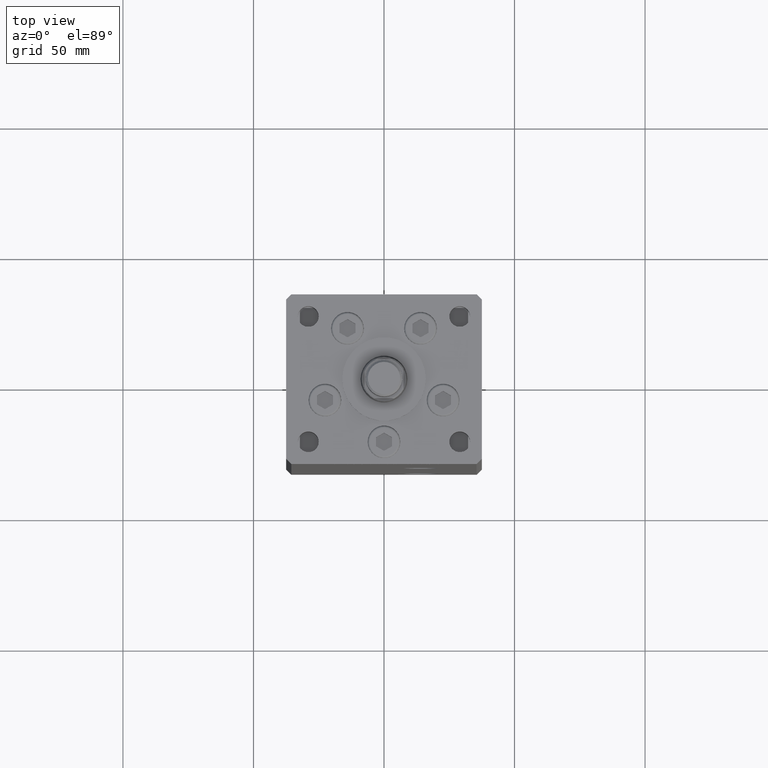
[diagram: clean part render]
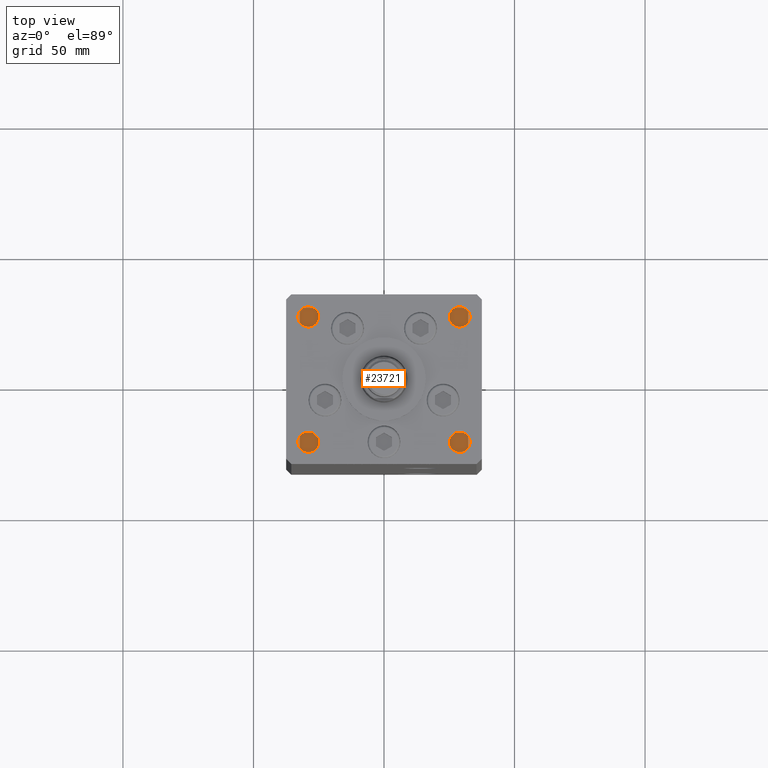
[diagram: same view with one face highlighted and labeled with its STEP entity id]
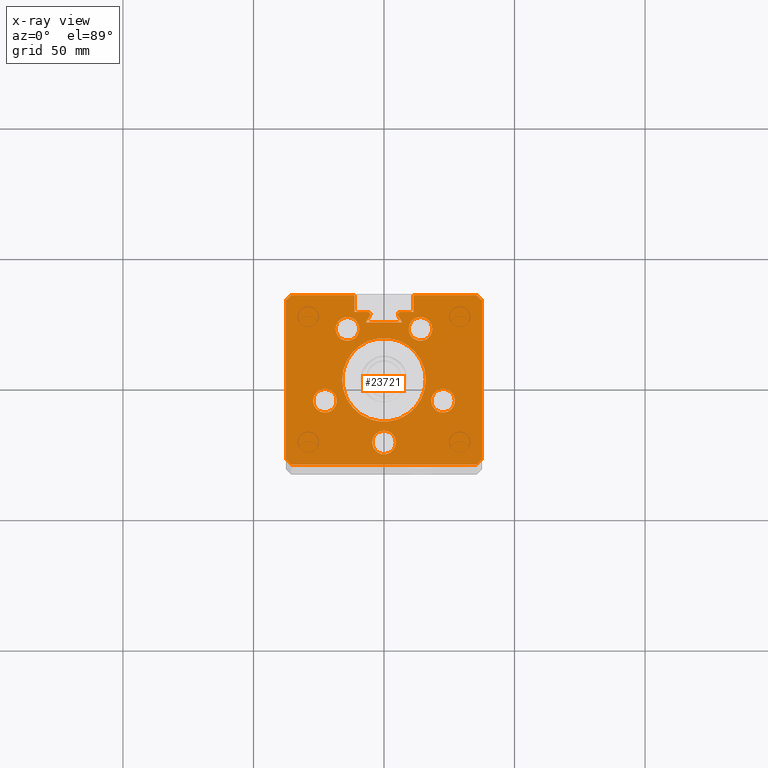
[diagram: x-ray of the same camera — body ghosted, the highlighted face saturated]
A machine part, top view. The second image highlights one B-rep face of the part: STEP entity #23721.
The next image is the same camera in x-ray: the body ghosted, the highlighted face saturated — about 0% of this face is hidden behind the body in this view.
In plain terms, the highlighted planar face has unit normal (0, 0, -1).
Its self-contained STEP definition (entity closure, byte-faithful):
#37 = VERTEX_POINT ( 'NONE', #48605 ) ;
#113 = CARTESIAN_POINT ( 'NONE',  ( -16.00000000000000000, 0.000000000000000000, 206.0000000000000000 ) ) ;
#117 = DIRECTION ( 'NONE',  ( 0.000000000000000000, 0.000000000000000000, -1.000000000000000000 ) ) ;
#181 = DIRECTION ( 'NONE',  ( 0.7071067811865474617, -0.7071067811865474617, 0.000000000000000000 ) ) ;
#227 = DIRECTION ( 'NONE',  ( 1.000000000000000000, 0.000000000000000000, 0.000000000000000000 ) ) ;
#376 = FACE_BOUND ( 'NONE', #45179, .T. ) ;
#673 = EDGE_LOOP ( 'NONE', ( #10820, #40652, #20268, #2091, #6942, #18285, #48519, #7137, #13218, #47845, #20406, #21920, #33794, #22411, #34809, #31749, #48899, #44355, #34330 ) ) ;
#1088 = VECTOR ( 'NONE', #27780, 1000.000000000000000 ) ;
#1311 = ORIENTED_EDGE ( 'NONE', *, *, #10623, .F. ) ;
#1349 = EDGE_CURVE ( 'NONE', #50211, #10175, #34166, .T. ) ;
#1500 = VERTEX_POINT ( 'NONE', #16149 ) ;
#1826 = AXIS2_PLACEMENT_3D ( 'NONE', #43500, #7503, #44012 ) ;
#1924 = CARTESIAN_POINT ( 'NONE',  ( -11.25000000000000178, 25.99999999999999289, 206.0000000000000000 ) ) ;
#2091 = ORIENTED_EDGE ( 'NONE', *, *, #26267, .T. ) ;
#2433 = VERTEX_POINT ( 'NONE', #31929 ) ;
#2911 = EDGE_CURVE ( 'NONE', #14420, #5429, #13732, .T. ) ;
#3542 = CARTESIAN_POINT ( 'NONE',  ( 14.68339468389911495, 8.477461873366666012, 206.0000000000000000 ) ) ;
#3585 = PLANE ( 'NONE',  #4993 ) ;
#3620 = ORIENTED_EDGE ( 'NONE', *, *, #41284, .F. ) ;
#3697 = CARTESIAN_POINT ( 'NONE',  ( 0.000000000000000000, 21.99999999999986855, 206.0000000000000000 ) ) ;
#3783 = DIRECTION ( 'NONE',  ( 0.000000000000000000, 1.000000000000000000, 0.000000000000000000 ) ) ;
#3785 = DIRECTION ( 'NONE',  ( 0.000000000000000000, 0.000000000000000000, -1.000000000000000000 ) ) ;
#3853 = EDGE_CURVE ( 'NONE', #47877, #9593, #51306, .T. ) ;
#4091 = FACE_OUTER_BOUND ( 'NONE', #673, .T. ) ;
#4115 = DIRECTION ( 'NONE',  ( 0.7071067811865500152, -0.7071067811865451302, 0.000000000000000000 ) ) ;
#4127 = VERTEX_POINT ( 'NONE', #113 ) ;
#4418 = CARTESIAN_POINT ( 'NONE',  ( -11.25000000000000178, 32.49999999999999289, 206.0000000000000000 ) ) ;
#4509 = VERTEX_POINT ( 'NONE', #37092 ) ;
#4525 = EDGE_LOOP ( 'NONE', ( #29965, #50258 ) ) ;
#4716 = EDGE_LOOP ( 'NONE', ( #19335, #1311 ) ) ;
#4993 = AXIS2_PLACEMENT_3D ( 'NONE', #23446, #117, #48553 ) ;
#5386 = VERTEX_POINT ( 'NONE', #14395 ) ;
#5429 = VERTEX_POINT ( 'NONE', #34494 ) ;
#5430 = CARTESIAN_POINT ( 'NONE',  ( 6.183333333334001480, 25.99999999999999289, 206.0000000000000000 ) ) ;
#5565 = EDGE_CURVE ( 'NONE', #17421, #13547, #15709, .T. ) ;
#6240 = CARTESIAN_POINT ( 'NONE',  ( 0.000000000000000000, 0.000000000000000000, 206.0000000000000000 ) ) ;
#6879 = VERTEX_POINT ( 'NONE', #45743 ) ;
#6942 = ORIENTED_EDGE ( 'NONE', *, *, #23113, .T. ) ;
#7077 = DIRECTION ( 'NONE',  ( 1.000000000000000000, 0.000000000000000000, 0.000000000000000000 ) ) ;
#7137 = ORIENTED_EDGE ( 'NONE', *, *, #14280, .F. ) ;
#7187 = EDGE_CURVE ( 'NONE', #4127, #33378, #25739, .T. ) ;
#7335 = DIRECTION ( 'NONE',  ( 0.000000000000000000, 0.000000000000000000, 1.000000000000000000 ) ) ;
#7457 = CARTESIAN_POINT ( 'NONE',  ( 4.500000000000000000, -24.00000000000000000, 206.0000000000000000 ) ) ;
#7503 = DIRECTION ( 'NONE',  ( 0.000000000000000000, 0.000000000000000000, -1.000000000000000000 ) ) ;
#7820 = FACE_BOUND ( 'NONE', #4716, .T. ) ;
#8153 = DIRECTION ( 'NONE',  ( 1.000000000000000000, 0.000000000000000000, 0.000000000000000000 ) ) ;
#8579 = VECTOR ( 'NONE', #47861, 1000.000000000000000 ) ;
#8842 = DIRECTION ( 'NONE',  ( -0.7071067811865474617, -0.7071067811865474617, 0.000000000000000000 ) ) ;
#9144 = EDGE_CURVE ( 'NONE', #27064, #13773, #27522, .T. ) ;
#9278 = CARTESIAN_POINT ( 'NONE',  ( 11.25000000000000178, 25.99999999999999289, 206.0000000000000000 ) ) ;
#9593 = VERTEX_POINT ( 'NONE', #42288 ) ;
#9863 = AXIS2_PLACEMENT_3D ( 'NONE', #27704, #43592, #48067 ) ;
#9877 = DIRECTION ( 'NONE',  ( 2.275047181608927644E-16, -1.000000000000000000, 0.000000000000000000 ) ) ;
#9879 = DIRECTION ( 'NONE',  ( 0.000000000000000000, 0.000000000000000000, 1.000000000000000000 ) ) ;
#10104 = LINE ( 'NONE', #26238, #17762 ) ;
#10175 = VERTEX_POINT ( 'NONE', #1924 ) ;
#10226 = CARTESIAN_POINT ( 'NONE',  ( -35.49999999999999289, -32.50000000000000000, 206.0000000000000000 ) ) ;
#10344 = DIRECTION ( 'NONE',  ( -1.000000000000000000, 0.000000000000000000, 0.000000000000000000 ) ) ;
#10515 = CARTESIAN_POINT ( 'NONE',  ( 37.50000000000000711, 30.50000000000000000, 206.0000000000000000 ) ) ;
#10623 = EDGE_CURVE ( 'NONE', #28094, #22994, #47842, .T. ) ;
#10820 = ORIENTED_EDGE ( 'NONE', *, *, #1349, .T. ) ;
#10963 = ORIENTED_EDGE ( 'NONE', *, *, #13136, .F. ) ;
#11019 = CARTESIAN_POINT ( 'NONE',  ( -13.99106857963322170, 19.50000000000000000, 206.0000000000000000 ) ) ;
#11872 = EDGE_LOOP ( 'NONE', ( #49570, #3620 ) ) ;
#12119 = LINE ( 'NONE', #36174, #39696 ) ;
#12294 = EDGE_CURVE ( 'NONE', #21342, #1500, #44483, .T. ) ;
#12697 = CIRCLE ( 'NONE', #44801, 4.499999999999997335 ) ;
#12964 = EDGE_CURVE ( 'NONE', #37, #31954, #46771, .T. ) ;
#12974 = EDGE_CURVE ( 'NONE', #47877, #37382, #42015, .T. ) ;
#13044 = LINE ( 'NONE', #41341, #26099 ) ;
#13136 = EDGE_CURVE ( 'NONE', #13773, #27064, #24260, .T. ) ;
#13218 = ORIENTED_EDGE ( 'NONE', *, *, #12964, .F. ) ;
#13451 = DIRECTION ( 'NONE',  ( -0.000000000000000000, -1.000000000000000000, 0.000000000000000000 ) ) ;
#13485 = AXIS2_PLACEMENT_3D ( 'NONE', #6240, #22380, #14445 ) ;
#13547 = VERTEX_POINT ( 'NONE', #36622 ) ;
#13589 = VERTEX_POINT ( 'NONE', #26254 ) ;
#13693 = VECTOR ( 'NONE', #3783, 1000.000000000000000 ) ;
#13732 = LINE ( 'NONE', #22190, #14833 ) ;
#13773 = VERTEX_POINT ( 'NONE', #48731 ) ;
#13805 = DIRECTION ( 'NONE',  ( 1.000000000000000000, 0.000000000000000000, 0.000000000000000000 ) ) ;
#14280 = EDGE_CURVE ( 'NONE', #31954, #4509, #28162, .T. ) ;
#14395 = CARTESIAN_POINT ( 'NONE',  ( -11.25000000000000178, 32.49999999999999289, 206.0000000000000000 ) ) ;
#14420 = VERTEX_POINT ( 'NONE', #46905 ) ;
#14423 = CIRCLE ( 'NONE', #16125, 4.500000000000000888 ) ;
#14445 = DIRECTION ( 'NONE',  ( 1.000000000000000000, 0.000000000000000000, 0.000000000000000000 ) ) ;
#14652 = CARTESIAN_POINT ( 'NONE',  ( -6.183333333334001480, 25.99999999999999289, 206.0000000000000000 ) ) ;
#14833 = VECTOR ( 'NONE', #34347, 999.9999999999998863 ) ;
#15060 = CARTESIAN_POINT ( 'NONE',  ( -37.50000000000000711, 30.50000000000000000, 206.0000000000000000 ) ) ;
#15709 = CIRCLE ( 'NONE', #30050, 4.499999999999997335 ) ;
#15963 = LINE ( 'NONE', #24687, #13693 ) ;
#16125 = AXIS2_PLACEMENT_3D ( 'NONE', #22119, #38244, #18152 ) ;
#16149 = CARTESIAN_POINT ( 'NONE',  ( -4.500000000000000000, -24.00000000000000000, 206.0000000000000000 ) ) ;
#16164 = AXIS2_PLACEMENT_3D ( 'NONE', #26235, #39401, #33928 ) ;
#16324 = VERTEX_POINT ( 'NONE', #10226 ) ;
#16339 = DIRECTION ( 'NONE',  ( 1.000000000000000000, 0.000000000000000000, 0.000000000000000000 ) ) ;
#16522 = ORIENTED_EDGE ( 'NONE', *, *, #39920, .F. ) ;
#16634 = EDGE_LOOP ( 'NONE', ( #21468, #24571 ) ) ;
#17028 = EDGE_CURVE ( 'NONE', #13589, #2433, #41261, .T. ) ;
#17421 = VERTEX_POINT ( 'NONE', #25531 ) ;
#17508 = VECTOR ( 'NONE', #38036, 1000.000000000000000 ) ;
#17762 = VECTOR ( 'NONE', #18847, 1000.000000000000114 ) ;
#17878 = CARTESIAN_POINT ( 'NONE',  ( 6.876153656360466826, 21.99999999999986855, 206.0000000000000000 ) ) ;
#18152 = DIRECTION ( 'NONE',  ( 1.000000000000000000, 0.000000000000000000, 0.000000000000000000 ) ) ;
#18285 = ORIENTED_EDGE ( 'NONE', *, *, #40475, .T. ) ;
#18747 = DIRECTION ( 'NONE',  ( 1.000000000000000000, 0.000000000000000000, 0.000000000000000000 ) ) ;
#18811 = LINE ( 'NONE', #3697, #1088 ) ;
#18847 = DIRECTION ( 'NONE',  ( -0.7071067811865500152, -0.7071067811865451302, 0.000000000000000000 ) ) ;
#19209 = CARTESIAN_POINT ( 'NONE',  ( 0.000000000000000000, 0.000000000000000000, 206.0000000000000000 ) ) ;
#19335 = ORIENTED_EDGE ( 'NONE', *, *, #26857, .F. ) ;
#19428 = CARTESIAN_POINT ( 'NONE',  ( -6.183333333334001480, 25.06666666666599141, 206.0000000000000000 ) ) ;
#19572 = CIRCLE ( 'NONE', #16164, 0.9333333333340008142 ) ;
#19721 = EDGE_CURVE ( 'NONE', #50211, #6879, #34572, .T. ) ;
#20268 = ORIENTED_EDGE ( 'NONE', *, *, #46947, .F. ) ;
#20406 = ORIENTED_EDGE ( 'NONE', *, *, #3853, .F. ) ;
#20531 = CARTESIAN_POINT ( 'NONE',  ( 35.50000000000000000, 32.49999999999999289, 206.0000000000000000 ) ) ;
#20593 = CARTESIAN_POINT ( 'NONE',  ( -35.49999999999999289, -32.50000000000000000, 206.0000000000000000 ) ) ;
#21342 = VERTEX_POINT ( 'NONE', #7457 ) ;
#21431 = CARTESIAN_POINT ( 'NONE',  ( 11.24999999999999467, 32.49999999999999289, 206.0000000000000000 ) ) ;
#21468 = ORIENTED_EDGE ( 'NONE', *, *, #12294, .F. ) ;
#21802 = LINE ( 'NONE', #47182, #25231 ) ;
#21920 = ORIENTED_EDGE ( 'NONE', *, *, #12974, .T. ) ;
#22119 = CARTESIAN_POINT ( 'NONE',  ( 22.62741699796951877, -8.000000000000000000, 206.0000000000000000 ) ) ;
#22190 = CARTESIAN_POINT ( 'NONE',  ( -14.68339468389911673, 8.477461873366666012, 206.0000000000000000 ) ) ;
#22380 = DIRECTION ( 'NONE',  ( -0.000000000000000000, 0.000000000000000000, 1.000000000000000000 ) ) ;
#22411 = ORIENTED_EDGE ( 'NONE', *, *, #48916, .F. ) ;
#22994 = VERTEX_POINT ( 'NONE', #48025 ) ;
#23113 = EDGE_CURVE ( 'NONE', #24558, #42012, #21802, .T. ) ;
#23259 = CARTESIAN_POINT ( 'NONE',  ( -13.99106857963322170, 19.50000000000000000, 206.0000000000000000 ) ) ;
#23267 = VECTOR ( 'NONE', #18747, 1000.000000000000000 ) ;
#23297 = AXIS2_PLACEMENT_3D ( 'NONE', #46414, #26552, #42703 ) ;
#23446 = CARTESIAN_POINT ( 'NONE',  ( 0.000000000000000000, 0.000000000000000000, 206.0000000000000000 ) ) ;
#23524 = DIRECTION ( 'NONE',  ( 0.000000000000000000, 0.000000000000000000, 1.000000000000000000 ) ) ;
#23721 = ADVANCED_FACE ( 'NONE', ( #7820, #28182, #32677, #376, #32411, #4091, #36378 ), #3585, .F. ) ;
#23985 = LINE ( 'NONE', #20531, #25348 ) ;
#24122 = EDGE_CURVE ( 'NONE', #37382, #49431, #13044, .T. ) ;
#24260 = CIRCLE ( 'NONE', #9863, 4.500000000000003553 ) ;
#24558 = VERTEX_POINT ( 'NONE', #15060 ) ;
#24571 = ORIENTED_EDGE ( 'NONE', *, *, #40078, .F. ) ;
#24581 = CARTESIAN_POINT ( 'NONE',  ( 0.000000000000000000, -24.00000000000000000, 206.0000000000000000 ) ) ;
#24658 = VECTOR ( 'NONE', #16339, 1000.000000000000000 ) ;
#24687 = CARTESIAN_POINT ( 'NONE',  ( -11.25000000000000178, 0.000000000000000000, 206.0000000000000000 ) ) ;
#24821 = LINE ( 'NONE', #20593, #8579 ) ;
#25231 = VECTOR ( 'NONE', #9877, 1000.000000000000000 ) ;
#25348 = VECTOR ( 'NONE', #4115, 1000.000000000000114 ) ;
#25531 = CARTESIAN_POINT ( 'NONE',  ( -9.491068579633225255, 19.50000000000000000, 206.0000000000000000 ) ) ;
#25739 = CIRCLE ( 'NONE', #33370, 16.00000000000000000 ) ;
#25788 = CARTESIAN_POINT ( 'NONE',  ( 16.00000000000000000, 1.959434878635765131E-15, 206.0000000000000000 ) ) ;
#26099 = VECTOR ( 'NONE', #41609, 1000.000000000000000 ) ;
#26157 = CARTESIAN_POINT ( 'NONE',  ( 37.49999999999999289, -30.50000000000000000, 206.0000000000000000 ) ) ;
#26235 = CARTESIAN_POINT ( 'NONE',  ( 6.183333333334001480, 25.06666666666599141, 206.0000000000000000 ) ) ;
#26238 = CARTESIAN_POINT ( 'NONE',  ( -35.50000000000000000, 32.49999999999999289, 206.0000000000000000 ) ) ;
#26254 = CARTESIAN_POINT ( 'NONE',  ( 27.12741699796952233, -8.000000000000000000, 206.0000000000000000 ) ) ;
#26267 = EDGE_CURVE ( 'NONE', #27049, #24558, #10104, .T. ) ;
#26552 = DIRECTION ( 'NONE',  ( 0.000000000000000000, 0.000000000000000000, 1.000000000000000000 ) ) ;
#26857 = EDGE_CURVE ( 'NONE', #22994, #28094, #41410, .T. ) ;
#26903 = AXIS2_PLACEMENT_3D ( 'NONE', #28517, #23524, #8153 ) ;
#26924 = EDGE_CURVE ( 'NONE', #9593, #37, #23985, .T. ) ;
#27049 = VERTEX_POINT ( 'NONE', #35246 ) ;
#27064 = VERTEX_POINT ( 'NONE', #48191 ) ;
#27522 = CIRCLE ( 'NONE', #23297, 4.500000000000003553 ) ;
#27704 = CARTESIAN_POINT ( 'NONE',  ( 13.99106857963322170, 19.50000000000000000, 206.0000000000000000 ) ) ;
#27780 = DIRECTION ( 'NONE',  ( -1.000000000000000000, 0.000000000000000000, 0.000000000000000000 ) ) ;
#28094 = VERTEX_POINT ( 'NONE', #34478 ) ;
#28144 = DIRECTION ( 'NONE',  ( 0.4999999999999996114, -0.8660254037844388186, 0.000000000000000000 ) ) ;
#28162 = LINE ( 'NONE', #44828, #52196 ) ;
#28182 = FACE_BOUND ( 'NONE', #16634, .T. ) ;
#28517 = CARTESIAN_POINT ( 'NONE',  ( 22.62741699796951877, -8.000000000000000000, 206.0000000000000000 ) ) ;
#29647 = ORIENTED_EDGE ( 'NONE', *, *, #9144, .F. ) ;
#29905 = VERTEX_POINT ( 'NONE', #30341 ) ;
#29965 = ORIENTED_EDGE ( 'NONE', *, *, #17028, .F. ) ;
#30050 = AXIS2_PLACEMENT_3D ( 'NONE', #23259, #39393, #43101 ) ;
#30088 = AXIS2_PLACEMENT_3D ( 'NONE', #37860, #46325, #13805 ) ;
#30122 = EDGE_LOOP ( 'NONE', ( #43327, #16522 ) ) ;
#30341 = CARTESIAN_POINT ( 'NONE',  ( 5.375042956467948052, 24.59999999999899245, 206.0000000000000000 ) ) ;
#30516 = EDGE_CURVE ( 'NONE', #16324, #4509, #24821, .T. ) ;
#30550 = VECTOR ( 'NONE', #28144, 1000.000000000000000 ) ;
#30607 = DIRECTION ( 'NONE',  ( 0.000000000000000000, 0.000000000000000000, 1.000000000000000000 ) ) ;
#31749 = ORIENTED_EDGE ( 'NONE', *, *, #35782, .T. ) ;
#31855 = VECTOR ( 'NONE', #13451, 1000.000000000000000 ) ;
#31929 = CARTESIAN_POINT ( 'NONE',  ( 18.12741699796951877, -8.000000000000000000, 206.0000000000000000 ) ) ;
#31954 = VERTEX_POINT ( 'NONE', #26157 ) ;
#32294 = EDGE_CURVE ( 'NONE', #10175, #5386, #15963, .T. ) ;
#32411 = FACE_BOUND ( 'NONE', #11872, .T. ) ;
#32677 = FACE_BOUND ( 'NONE', #4525, .T. ) ;
#33370 = AXIS2_PLACEMENT_3D ( 'NONE', #19209, #39308, #34814 ) ;
#33378 = VERTEX_POINT ( 'NONE', #25788 ) ;
#33794 = ORIENTED_EDGE ( 'NONE', *, *, #24122, .T. ) ;
#33928 = DIRECTION ( 'NONE',  ( 1.000000000000000000, 0.000000000000000000, 0.000000000000000000 ) ) ;
#33997 = VERTEX_POINT ( 'NONE', #17878 ) ;
#34166 = LINE ( 'NONE', #46335, #51372 ) ;
#34330 = ORIENTED_EDGE ( 'NONE', *, *, #19721, .F. ) ;
#34347 = DIRECTION ( 'NONE',  ( 0.4999999999999996114, 0.8660254037844389297, 0.000000000000000000 ) ) ;
#34478 = CARTESIAN_POINT ( 'NONE',  ( -27.12741699796952233, -8.000000000000000000, 206.0000000000000000 ) ) ;
#34494 = CARTESIAN_POINT ( 'NONE',  ( -5.375042956467946276, 24.59999999999899245, 205.9999999999999716 ) ) ;
#34572 = CIRCLE ( 'NONE', #50626, 0.9333333333340008142 ) ;
#34809 = ORIENTED_EDGE ( 'NONE', *, *, #49636, .T. ) ;
#34814 = DIRECTION ( 'NONE',  ( 1.000000000000000000, 0.000000000000000000, 0.000000000000000000 ) ) ;
#34817 = CIRCLE ( 'NONE', #1826, 0.9333333333340008142 ) ;
#35246 = CARTESIAN_POINT ( 'NONE',  ( -35.50000000000000000, 32.49999999999999289, 206.0000000000000000 ) ) ;
#35782 = EDGE_CURVE ( 'NONE', #33997, #14420, #18811, .T. ) ;
#36174 = CARTESIAN_POINT ( 'NONE',  ( -37.49999999999999289, -30.50000000000000000, 206.0000000000000000 ) ) ;
#36215 = DIRECTION ( 'NONE',  ( 0.000000000000000000, 0.000000000000000000, 1.000000000000000000 ) ) ;
#36378 = FACE_BOUND ( 'NONE', #30122, .T. ) ;
#36622 = CARTESIAN_POINT ( 'NONE',  ( -18.49106857963321815, 19.50000000000000000, 206.0000000000000000 ) ) ;
#37092 = CARTESIAN_POINT ( 'NONE',  ( 35.49999999999999289, -32.50000000000000000, 206.0000000000000000 ) ) ;
#37172 = AXIS2_PLACEMENT_3D ( 'NONE', #47023, #7335, #7077 ) ;
#37382 = VERTEX_POINT ( 'NONE', #9278 ) ;
#37860 = CARTESIAN_POINT ( 'NONE',  ( -22.62741699796951877, -8.000000000000000000, 206.0000000000000000 ) ) ;
#37981 = CIRCLE ( 'NONE', #41396, 4.500000000000000000 ) ;
#38036 = DIRECTION ( 'NONE',  ( -2.275047181608927644E-16, -1.000000000000000000, 0.000000000000000000 ) ) ;
#38244 = DIRECTION ( 'NONE',  ( 0.000000000000000000, 0.000000000000000000, 1.000000000000000000 ) ) ;
#39308 = DIRECTION ( 'NONE',  ( -0.000000000000000000, 0.000000000000000000, 1.000000000000000000 ) ) ;
#39393 = DIRECTION ( 'NONE',  ( 0.000000000000000000, 0.000000000000000000, 1.000000000000000000 ) ) ;
#39401 = DIRECTION ( 'NONE',  ( 0.000000000000000000, 0.000000000000000000, -1.000000000000000000 ) ) ;
#39696 = VECTOR ( 'NONE', #181, 1000.000000000000114 ) ;
#39790 = DIRECTION ( 'NONE',  ( 1.000000000000000000, 0.000000000000000000, 0.000000000000000000 ) ) ;
#39801 = LINE ( 'NONE', #3542, #30550 ) ;
#39920 = EDGE_CURVE ( 'NONE', #33378, #4127, #52396, .T. ) ;
#40078 = EDGE_CURVE ( 'NONE', #1500, #21342, #37981, .T. ) ;
#40264 = CARTESIAN_POINT ( 'NONE',  ( -37.49999999999999289, -30.50000000000000000, 206.0000000000000000 ) ) ;
#40475 = EDGE_CURVE ( 'NONE', #42012, #16324, #12119, .T. ) ;
#40652 = ORIENTED_EDGE ( 'NONE', *, *, #32294, .T. ) ;
#41261 = CIRCLE ( 'NONE', #26903, 4.500000000000000888 ) ;
#41284 = EDGE_CURVE ( 'NONE', #13547, #17421, #12697, .T. ) ;
#41341 = CARTESIAN_POINT ( 'NONE',  ( 0.000000000000000000, 25.99999999999999289, 206.0000000000000000 ) ) ;
#41396 = AXIS2_PLACEMENT_3D ( 'NONE', #41913, #9879, #50906 ) ;
#41410 = CIRCLE ( 'NONE', #37172, 4.500000000000000888 ) ;
#41609 = DIRECTION ( 'NONE',  ( -1.000000000000000000, 0.000000000000000000, 0.000000000000000000 ) ) ;
#41913 = CARTESIAN_POINT ( 'NONE',  ( 0.000000000000000000, -24.00000000000000000, 206.0000000000000000 ) ) ;
#42012 = VERTEX_POINT ( 'NONE', #40264 ) ;
#42015 = LINE ( 'NONE', #49954, #31855 ) ;
#42288 = CARTESIAN_POINT ( 'NONE',  ( 35.50000000000000000, 32.49999999999999289, 206.0000000000000000 ) ) ;
#42703 = DIRECTION ( 'NONE',  ( 1.000000000000000000, 0.000000000000000000, 0.000000000000000000 ) ) ;
#42817 = CARTESIAN_POINT ( 'NONE',  ( -11.25000000000000178, 32.49999999999999289, 206.0000000000000000 ) ) ;
#42989 = EDGE_CURVE ( 'NONE', #2433, #13589, #14423, .T. ) ;
#43101 = DIRECTION ( 'NONE',  ( 1.000000000000000000, 0.000000000000000000, 0.000000000000000000 ) ) ;
#43327 = ORIENTED_EDGE ( 'NONE', *, *, #7187, .F. ) ;
#43500 = CARTESIAN_POINT ( 'NONE',  ( -6.183333333334001480, 25.06666666666599141, 206.0000000000000000 ) ) ;
#43592 = DIRECTION ( 'NONE',  ( 0.000000000000000000, 0.000000000000000000, 1.000000000000000000 ) ) ;
#44012 = DIRECTION ( 'NONE',  ( 1.000000000000000000, 0.000000000000000000, 0.000000000000000000 ) ) ;
#44355 = ORIENTED_EDGE ( 'NONE', *, *, #51136, .F. ) ;
#44483 = CIRCLE ( 'NONE', #47045, 4.500000000000000000 ) ;
#44801 = AXIS2_PLACEMENT_3D ( 'NONE', #11019, #30607, #49998 ) ;
#44828 = CARTESIAN_POINT ( 'NONE',  ( 37.49999999999999289, -30.50000000000000000, 206.0000000000000000 ) ) ;
#45179 = EDGE_LOOP ( 'NONE', ( #10963, #29647 ) ) ;
#45743 = CARTESIAN_POINT ( 'NONE',  ( -5.250000000000000000, 25.06666666666599141, 206.0000000000000000 ) ) ;
#46325 = DIRECTION ( 'NONE',  ( 0.000000000000000000, 0.000000000000000000, 1.000000000000000000 ) ) ;
#46335 = CARTESIAN_POINT ( 'NONE',  ( 0.000000000000000000, 25.99999999999999289, 206.0000000000000000 ) ) ;
#46414 = CARTESIAN_POINT ( 'NONE',  ( 13.99106857963322170, 19.50000000000000000, 206.0000000000000000 ) ) ;
#46771 = LINE ( 'NONE', #10515, #17508 ) ;
#46905 = CARTESIAN_POINT ( 'NONE',  ( -6.876153656360466826, 21.99999999999986855, 206.0000000000000000 ) ) ;
#46947 = EDGE_CURVE ( 'NONE', #27049, #5386, #52330, .T. ) ;
#47023 = CARTESIAN_POINT ( 'NONE',  ( -22.62741699796951877, -8.000000000000000000, 206.0000000000000000 ) ) ;
#47045 = AXIS2_PLACEMENT_3D ( 'NONE', #24581, #36215, #227 ) ;
#47182 = CARTESIAN_POINT ( 'NONE',  ( -37.50000000000000711, 30.50000000000000000, 206.0000000000000000 ) ) ;
#47842 = CIRCLE ( 'NONE', #30088, 4.500000000000000888 ) ;
#47845 = ORIENTED_EDGE ( 'NONE', *, *, #26924, .F. ) ;
#47861 = DIRECTION ( 'NONE',  ( 1.000000000000000000, 0.000000000000000000, 0.000000000000000000 ) ) ;
#47877 = VERTEX_POINT ( 'NONE', #21431 ) ;
#48025 = CARTESIAN_POINT ( 'NONE',  ( -18.12741699796951877, -8.000000000000000000, 206.0000000000000000 ) ) ;
#48067 = DIRECTION ( 'NONE',  ( 1.000000000000000000, 0.000000000000000000, 0.000000000000000000 ) ) ;
#48191 = CARTESIAN_POINT ( 'NONE',  ( 9.491068579633218150, 19.50000000000000000, 206.0000000000000000 ) ) ;
#48519 = ORIENTED_EDGE ( 'NONE', *, *, #30516, .T. ) ;
#48553 = DIRECTION ( 'NONE',  ( -1.000000000000000000, 0.000000000000000000, -0.000000000000000000 ) ) ;
#48605 = CARTESIAN_POINT ( 'NONE',  ( 37.50000000000000711, 30.50000000000000000, 206.0000000000000000 ) ) ;
#48731 = CARTESIAN_POINT ( 'NONE',  ( 18.49106857963322526, 19.50000000000000000, 206.0000000000000000 ) ) ;
#48899 = ORIENTED_EDGE ( 'NONE', *, *, #2911, .T. ) ;
#48916 = EDGE_CURVE ( 'NONE', #29905, #49431, #19572, .T. ) ;
#49431 = VERTEX_POINT ( 'NONE', #5430 ) ;
#49570 = ORIENTED_EDGE ( 'NONE', *, *, #5565, .F. ) ;
#49636 = EDGE_CURVE ( 'NONE', #29905, #33997, #39801, .T. ) ;
#49954 = CARTESIAN_POINT ( 'NONE',  ( 11.25000000000000178, 0.000000000000000000, 206.0000000000000000 ) ) ;
#49998 = DIRECTION ( 'NONE',  ( 1.000000000000000000, 0.000000000000000000, 0.000000000000000000 ) ) ;
#50211 = VERTEX_POINT ( 'NONE', #14652 ) ;
#50258 = ORIENTED_EDGE ( 'NONE', *, *, #42989, .F. ) ;
#50626 = AXIS2_PLACEMENT_3D ( 'NONE', #19428, #3785, #39790 ) ;
#50906 = DIRECTION ( 'NONE',  ( 1.000000000000000000, 0.000000000000000000, 0.000000000000000000 ) ) ;
#51136 = EDGE_CURVE ( 'NONE', #6879, #5429, #34817, .T. ) ;
#51306 = LINE ( 'NONE', #42817, #23267 ) ;
#51372 = VECTOR ( 'NONE', #10344, 1000.000000000000000 ) ;
#52196 = VECTOR ( 'NONE', #8842, 1000.000000000000114 ) ;
#52330 = LINE ( 'NONE', #4418, #24658 ) ;
#52396 = CIRCLE ( 'NONE', #13485, 16.00000000000000000 ) ;